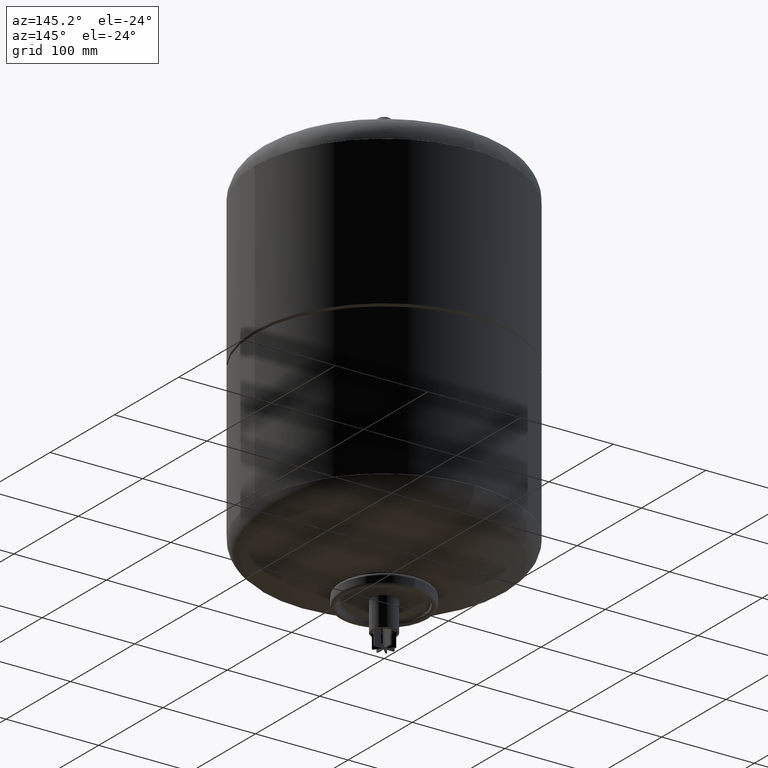
[diagram: clean part render]
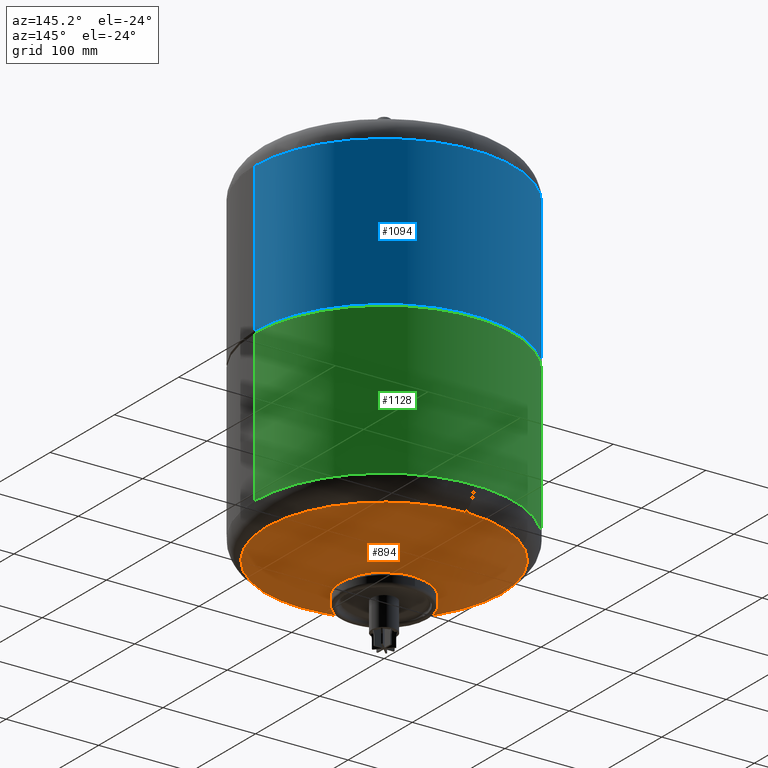
[diagram: same view with three faces highlighted in distinct colors, each labeled with its STEP entity id]
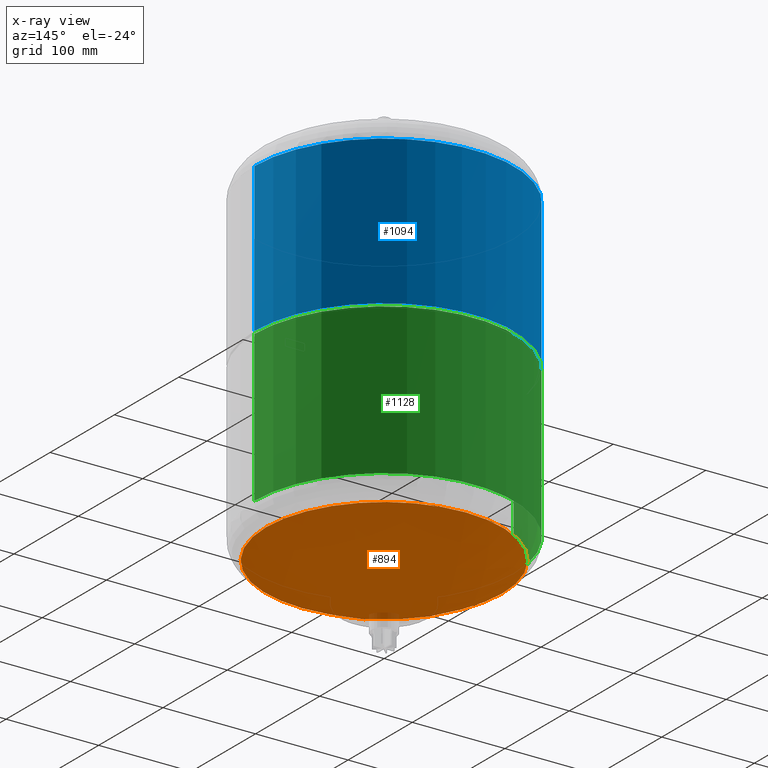
[diagram: x-ray of the same camera — body ghosted, the three highlighted faces saturated]
A machine part, auxiliary view with three faces highlighted in distinct colors.
The next image is the same camera in x-ray (body ghosted, the three faces saturated) — at least one of them is partly hidden behind the body in this view.
Their STEP definitions:

[orange] entity #894 — the highlighted spherical surface has radius 258 mm.
#833=CARTESIAN_POINT('',(3.355614E-015,-127.339055793991430,85.614695513510156));
#834=VERTEX_POINT('',#833);
#850=CARTESIAN_POINT('',(-1.223841E-014,127.339055793991430,85.614695513510213));
#851=VERTEX_POINT('',#850);
#859=CARTESIAN_POINT('',(-127.339055793991450,4.112114E-015,85.614695513510213));
#860=VERTEX_POINT('',#859);
#861=CARTESIAN_POINT('',(-4.148636E-015,4.112114E-015,85.614695513510185));
#862=DIRECTION('',(0.0,0.0,1.0));
#863=DIRECTION('',(-1.0,0.0,0.0));
#864=AXIS2_PLACEMENT_3D('',#861,#862,#863);
#865=CIRCLE('',#864,127.339055793991430);
#866=EDGE_CURVE('',#851,#860,#865,.T.);
#868=CARTESIAN_POINT('',(-4.148636E-015,4.112114E-015,85.614695513510185));
#869=DIRECTION('',(0.0,0.0,1.0));
#870=DIRECTION('',(-1.0,0.0,0.0));
#871=AXIS2_PLACEMENT_3D('',#868,#869,#870);
#872=CIRCLE('',#871,127.339055793991430);
#873=EDGE_CURVE('',#860,#834,#872,.T.);
#878=CARTESIAN_POINT('',(-4.947573E-014,-3.710680E-014,310.000000000000060));
#879=DIRECTION('',(0.0,-1.0,0.0));
#880=DIRECTION('',(1.0,0.0,0.0));
#881=AXIS2_PLACEMENT_3D('',#878,#879,#880);
#882=SPHERICAL_SURFACE('',#881,258.000000000000060);
#883=ORIENTED_EDGE('',*,*,#873,.F.);
#884=ORIENTED_EDGE('',*,*,#866,.F.);
#885=CARTESIAN_POINT('',(-4.148636E-015,4.112114E-015,85.614695513510185));
#886=DIRECTION('',(0.0,0.0,1.0));
#887=DIRECTION('',(-1.0,0.0,0.0));
#888=AXIS2_PLACEMENT_3D('',#885,#886,#887);
#889=CIRCLE('',#888,127.339055793991430);
#890=EDGE_CURVE('',#834,#851,#889,.T.);
#891=ORIENTED_EDGE('',*,*,#890,.F.);
#892=EDGE_LOOP('',(#883,#884,#891));
#893=FACE_OUTER_BOUND('',#892,.T.);
#894=ADVANCED_FACE('',(#893),#882,.T.);

[blue] entity #1094 — the highlighted cylindrical surface (partial cylindrical patch) has radius 140 mm, axis along (0, 0, 1).
#950=CARTESIAN_POINT('',(140.0,0.0,272.999999999999940));
#951=VERTEX_POINT('',#950);
#960=CARTESIAN_POINT('',(-140.0,-1.714449E-014,273.0));
#961=VERTEX_POINT('',#960);
#1034=CARTESIAN_POINT('',(140.0,0.0,433.0));
#1035=VERTEX_POINT('',#1034);
#1036=CARTESIAN_POINT('',(140.0,0.0,433.0));
#1037=DIRECTION('',(0.0,0.0,-1.0));
#1038=VECTOR('',#1037,160.000000000000060);
#1039=LINE('',#1036,#1038);
#1040=EDGE_CURVE('',#1035,#951,#1039,.T.);
#1042=CARTESIAN_POINT('',(-140.0,-1.714449E-014,433.0));
#1043=VERTEX_POINT('',#1042);
#1051=CARTESIAN_POINT('',(-140.0,-1.714449E-014,433.0));
#1052=DIRECTION('',(0.0,0.0,-1.0));
#1053=VECTOR('',#1052,160.0);
#1054=LINE('',#1051,#1053);
#1055=EDGE_CURVE('',#1043,#961,#1054,.T.);
#1067=CARTESIAN_POINT('',(0.0,0.0,433.0));
#1068=DIRECTION('',(0.0,0.0,1.0));
#1069=DIRECTION('',(1.0,0.0,0.0));
#1070=AXIS2_PLACEMENT_3D('',#1067,#1068,#1069);
#1071=CIRCLE('',#1070,140.0);
#1072=EDGE_CURVE('',#1035,#1043,#1071,.T.);
#1077=CARTESIAN_POINT('',(0.0,0.0,353.250000000000000));
#1078=DIRECTION('',(0.0,0.0,1.0));
#1079=DIRECTION('',(1.0,0.0,0.0));
#1080=AXIS2_PLACEMENT_3D('',#1077,#1078,#1079);
#1081=CYLINDRICAL_SURFACE('',#1080,140.0);
#1082=ORIENTED_EDGE('',*,*,#1040,.T.);
#1083=CARTESIAN_POINT('',(0.0,0.0,273.0));
#1084=DIRECTION('',(0.0,0.0,1.0));
#1085=DIRECTION('',(1.0,0.0,0.0));
#1086=AXIS2_PLACEMENT_3D('',#1083,#1084,#1085);
#1087=CIRCLE('',#1086,140.0);
#1088=EDGE_CURVE('',#951,#961,#1087,.T.);
#1089=ORIENTED_EDGE('',*,*,#1088,.T.);
#1090=ORIENTED_EDGE('',*,*,#1055,.F.);
#1091=ORIENTED_EDGE('',*,*,#1072,.F.);
#1092=EDGE_LOOP('',(#1082,#1089,#1090,#1091));
#1093=FACE_OUTER_BOUND('',#1092,.T.);
#1094=ADVANCED_FACE('',(#1093),#1081,.T.);

[green] entity #1128 — the highlighted cylindrical surface (partial cylindrical patch) has radius 140 mm, axis along (0, 0, 1).
#992=CARTESIAN_POINT('',(139.999999999999970,0.0,269.999999999999940));
#993=VERTEX_POINT('',#992);
#994=CARTESIAN_POINT('',(139.999999999999940,0.0,107.999999999999940));
#995=VERTEX_POINT('',#994);
#996=CARTESIAN_POINT('',(139.999999999999970,0.0,269.999999999999940));
#997=DIRECTION('',(0.0,0.0,-1.0));
#998=VECTOR('',#997,162.0);
#999=LINE('',#996,#998);
#1000=EDGE_CURVE('',#993,#995,#999,.T.);
#1002=CARTESIAN_POINT('',(-139.999999999999940,-1.714449E-014,269.999999999999940));
#1003=VERTEX_POINT('',#1002);
#1011=CARTESIAN_POINT('',(-139.999999999999940,1.714449E-014,107.999999999999940));
#1012=VERTEX_POINT('',#1011);
#1013=CARTESIAN_POINT('',(-139.999999999999940,-1.714449E-014,269.999999999999940));
#1014=DIRECTION('',(0.0,0.0,-1.0));
#1015=VECTOR('',#1014,162.0);
#1016=LINE('',#1013,#1015);
#1017=EDGE_CURVE('',#1003,#1012,#1016,.T.);
#1100=CARTESIAN_POINT('',(0.0,0.0,107.999999999999940));
#1101=DIRECTION('',(0.0,0.0,-1.0));
#1102=DIRECTION('',(1.0,0.0,0.0));
#1103=AXIS2_PLACEMENT_3D('',#1100,#1101,#1102);
#1104=CIRCLE('',#1103,139.999999999999940);
#1105=EDGE_CURVE('',#1012,#995,#1104,.T.);
#1111=CARTESIAN_POINT('',(0.0,0.0,188.749999999999940));
#1112=DIRECTION('',(0.0,0.0,1.0));
#1113=DIRECTION('',(1.0,0.0,0.0));
#1114=AXIS2_PLACEMENT_3D('',#1111,#1112,#1113);
#1115=CYLINDRICAL_SURFACE('',#1114,139.999999999999940);
#1116=ORIENTED_EDGE('',*,*,#1000,.T.);
#1117=ORIENTED_EDGE('',*,*,#1105,.F.);
#1118=ORIENTED_EDGE('',*,*,#1017,.F.);
#1119=CARTESIAN_POINT('',(0.0,0.0,269.999999999999940));
#1120=DIRECTION('',(0.0,0.0,1.0));
#1121=DIRECTION('',(1.0,0.0,0.0));
#1122=AXIS2_PLACEMENT_3D('',#1119,#1120,#1121);
#1123=CIRCLE('',#1122,139.999999999999970);
#1124=EDGE_CURVE('',#993,#1003,#1123,.T.);
#1125=ORIENTED_EDGE('',*,*,#1124,.F.);
#1126=EDGE_LOOP('',(#1116,#1117,#1118,#1125));
#1127=FACE_OUTER_BOUND('',#1126,.T.);
#1128=ADVANCED_FACE('',(#1127),#1115,.T.);